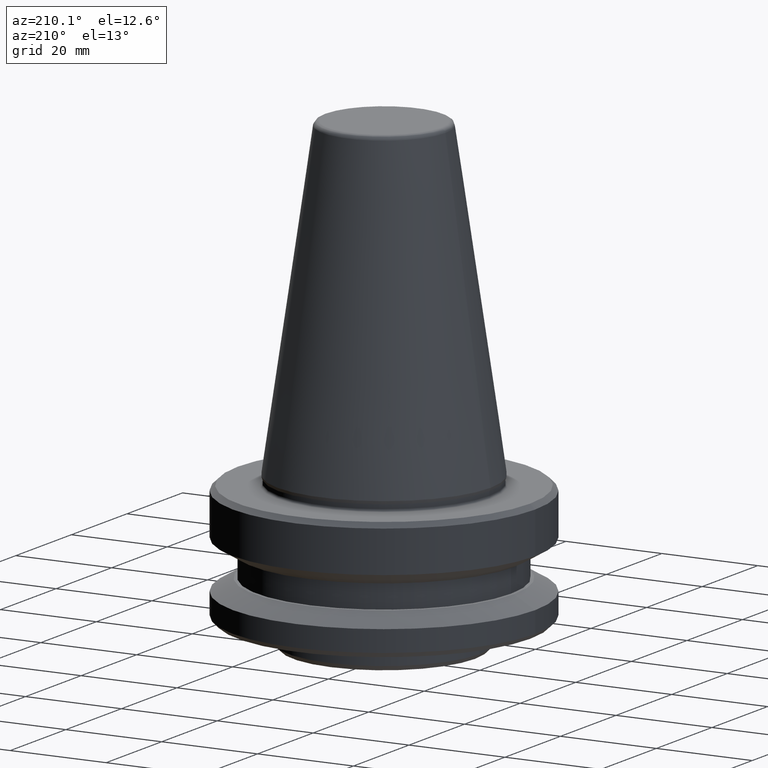
[diagram: clean part render]
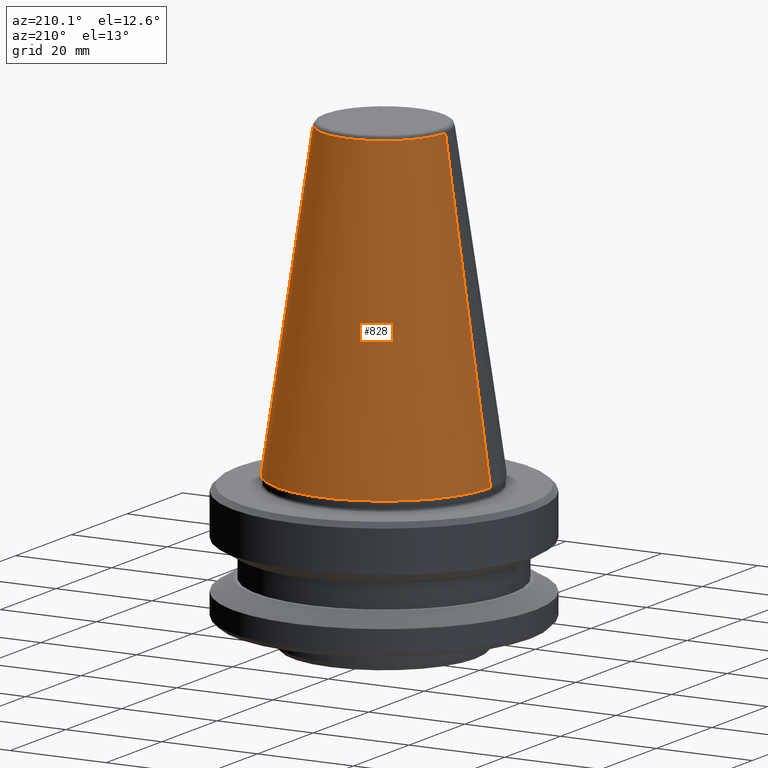
[diagram: same view with one face highlighted and labeled with its STEP entity id]
A machine part, auxiliary view. The second image highlights one B-rep face of the part: STEP entity #828.
In plain terms, the highlighted conical surface has half-angle 8.297 deg.
Its self-contained STEP definition (entity closure, byte-faithful):
#13 = VERTEX_POINT ( 'NONE', #213 ) ;
#65 = DIRECTION ( 'NONE',  ( 0.0000000000000000000, 0.0000000000000000000, -1.000000000000000000 ) ) ;
#73 = DIRECTION ( 'NONE',  ( -0.0000000000000000000, -0.0000000000000000000, 1.000000000000000000 ) ) ;
#127 = LINE ( 'NONE', #471, #487 ) ;
#147 = EDGE_CURVE ( 'NONE', #675, #586, #253, .T. ) ;
#158 = CARTESIAN_POINT ( 'NONE',  ( 0.0000000000000000000, 0.0000000000000000000, 4.440892098500626200E-013 ) ) ;
#166 = LINE ( 'NONE', #866, #365 ) ;
#186 = FACE_OUTER_BOUND ( 'NONE', #707, .T. ) ;
#213 = CARTESIAN_POINT ( 'NONE',  ( -12.81220206925781600, 0.0000000000000000000, 64.54430818888745600 ) ) ;
#253 = CIRCLE ( 'NONE', #572, 22.22500000000016100 ) ;
#293 = AXIS2_PLACEMENT_3D ( 'NONE', #777, #719, #525 ) ;
#337 = EDGE_CURVE ( 'NONE', #527, #13, #724, .T. ) ;
#365 = VECTOR ( 'NONE', #836, 999.9999999999998900 ) ;
#380 = DIRECTION ( 'NONE',  ( 1.000000000000000000, 0.0000000000000000000, 0.0000000000000000000 ) ) ;
#397 = CARTESIAN_POINT ( 'NONE',  ( -22.22500000000016100, 2.721777511105012200E-015, 4.440892098500626200E-013 ) ) ;
#411 = AXIS2_PLACEMENT_3D ( 'NONE', #158, #65, #496 ) ;
#470 = ORIENTED_EDGE ( 'NONE', *, *, #826, .F. ) ;
#471 = CARTESIAN_POINT ( 'NONE',  ( 22.22500000000016100, 2.721777511105012600E-015, 4.440892098500626200E-013 ) ) ;
#487 = VECTOR ( 'NONE', #987, 999.9999999999998900 ) ;
#496 = DIRECTION ( 'NONE',  ( -1.000000000000000000, 0.0000000000000000000, 0.0000000000000000000 ) ) ;
#525 = DIRECTION ( 'NONE',  ( 1.000000000000000000, 0.0000000000000000000, 0.0000000000000000000 ) ) ;
#527 = VERTEX_POINT ( 'NONE', #552 ) ;
#552 = CARTESIAN_POINT ( 'NONE',  ( 12.81220206925781600, 2.145409868259790500E-015, 64.54430818888745600 ) ) ;
#572 = AXIS2_PLACEMENT_3D ( 'NONE', #747, #73, #380 ) ;
#581 = ORIENTED_EDGE ( 'NONE', *, *, #337, .F. ) ;
#586 = VERTEX_POINT ( 'NONE', #397 ) ;
#630 = ORIENTED_EDGE ( 'NONE', *, *, #641, .T. ) ;
#641 = EDGE_CURVE ( 'NONE', #527, #675, #127, .T. ) ;
#675 = VERTEX_POINT ( 'NONE', #967 ) ;
#707 = EDGE_LOOP ( 'NONE', ( #581, #630, #877, #470 ) ) ;
#719 = DIRECTION ( 'NONE',  ( -0.0000000000000000000, -0.0000000000000000000, 1.000000000000000000 ) ) ;
#724 = CIRCLE ( 'NONE', #293, 12.81220206925781600 ) ;
#747 = CARTESIAN_POINT ( 'NONE',  ( 0.0000000000000000000, 0.0000000000000000000, 4.440892098500626200E-013 ) ) ;
#777 = CARTESIAN_POINT ( 'NONE',  ( 0.0000000000000000000, 0.0000000000000000000, 64.54430818888745600 ) ) ;
#826 = EDGE_CURVE ( 'NONE', #13, #586, #166, .T. ) ;
#828 = ADVANCED_FACE ( 'NONE', ( #186 ), #935, .T. ) ;
#836 = DIRECTION ( 'NONE',  ( -0.1443081888881791500, 0.0000000000000000000, -0.9895327920891827700 ) ) ;
#866 = CARTESIAN_POINT ( 'NONE',  ( -22.22500000000016100, 0.0000000000000000000, 4.440892098500626200E-013 ) ) ;
#877 = ORIENTED_EDGE ( 'NONE', *, *, #147, .T. ) ;
#935 = CONICAL_SURFACE ( 'NONE', #411, 22.22500000000016100, 0.1448138077623193600 ) ;
#967 = CARTESIAN_POINT ( 'NONE',  ( 22.22500000000016100, 0.0000000000000000000, 4.440892098500626200E-013 ) ) ;
#987 = DIRECTION ( 'NONE',  ( 0.1443081888881791500, 1.767265616126602400E-017, -0.9895327920891827700 ) ) ;